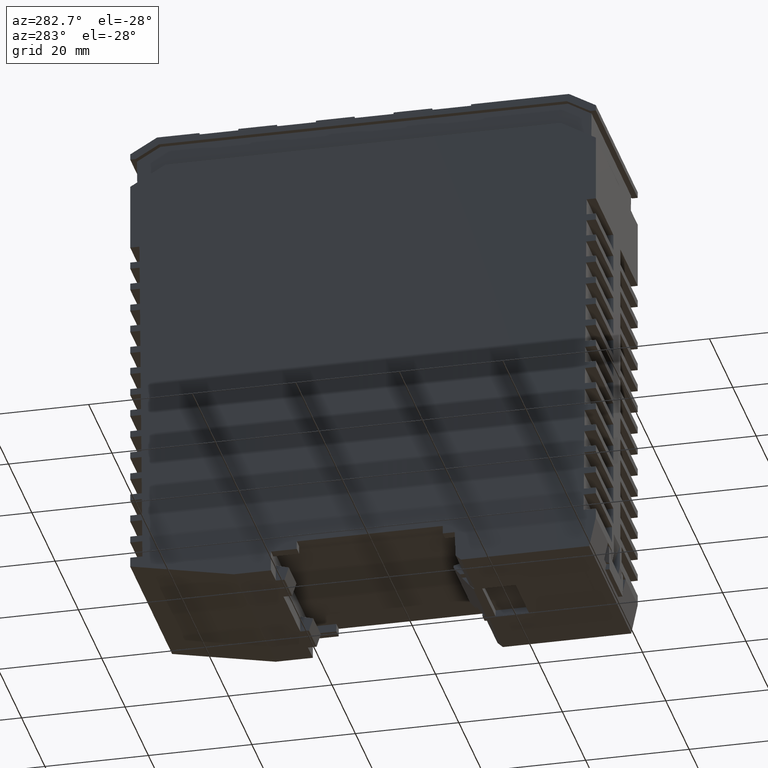
[diagram: clean part render]
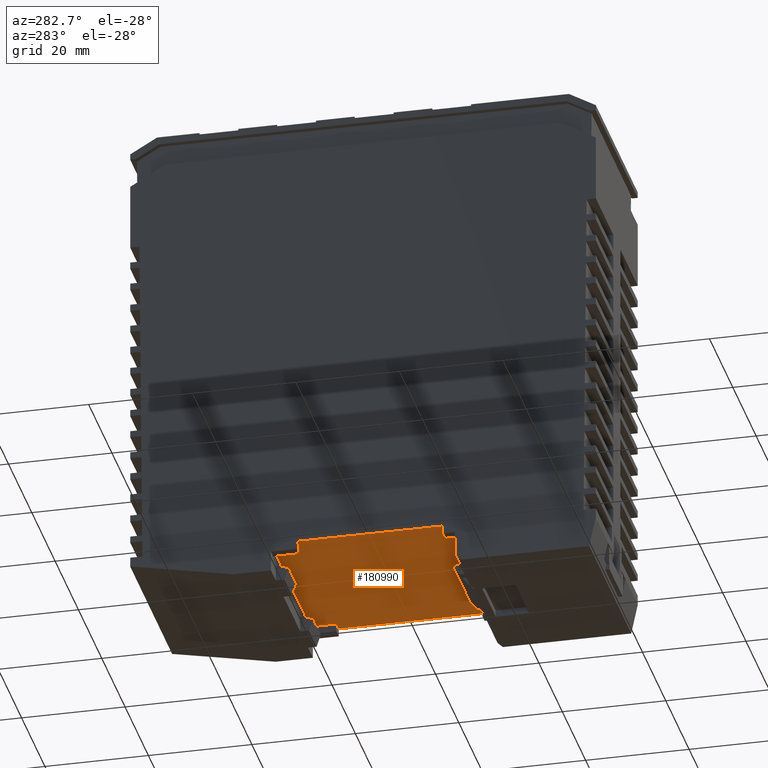
[diagram: same view with one face highlighted and labeled with its STEP entity id]
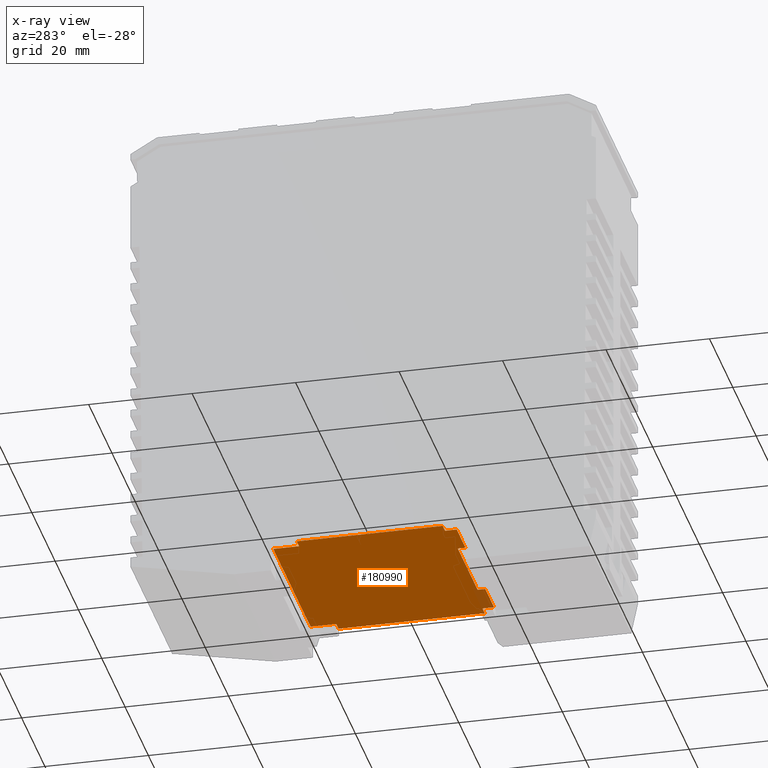
[diagram: x-ray of the same camera — body ghosted, the highlighted face saturated]
A machine part, auxiliary view. The second image highlights one B-rep face of the part: STEP entity #180990.
The next image is the same camera in x-ray: the body ghosted, the highlighted face saturated — about 2% of this face is hidden behind the body in this view.
In plain terms, the highlighted planar face has unit normal (-0, 0, 1).
Its self-contained STEP definition (entity closure, byte-faithful):
#9910=CARTESIAN_POINT('',(166.400000202669,9.2999999999998,
-34.799790209862));
#9920=VERTEX_POINT('',#9910);
#9950=CARTESIAN_POINT('',(166.400000202669,24.6999996755416,
-34.799790209862));
#9960=DIRECTION('',(-1.00166402301343E-25,1.,-8.52299310107004E-24));
#9970=VECTOR('',#9960,1.);
#9980=LINE('',#9950,#9970);
#9990=CARTESIAN_POINT('',(166.400000202669,37.4999999999998,
-34.799790209862));
#10000=VERTEX_POINT('',#9990);
#10010=EDGE_CURVE('',#9920,#10000,#9980,.T.);
#78060=CARTESIAN_POINT('',(166.400000231902,8.53015907447921,
-8.30937387732433));
#78070=VERTEX_POINT('',#78060);
#78100=CARTESIAN_POINT('',(166.400000202669,8.53015907447921,
-34.799790209862));
#78110=DIRECTION('',(-1.10352367625519E-9,5.5511142706911E-17,-1.));
#78120=VECTOR('',#78110,1.);
#78130=LINE('',#78100,#78120);
#78140=CARTESIAN_POINT('',(166.400000213142,8.53015907447921,
-25.3093738773243));
#78150=VERTEX_POINT('',#78140);
#78160=EDGE_CURVE('',#78070,#78150,#78130,.T.);
#86990=CARTESIAN_POINT('',(166.400000240189,37.4999999999998,
-0.799790209861939));
#87000=VERTEX_POINT('',#86990);
#87030=CARTESIAN_POINT('',(166.4000002464,37.4999999999998,
4.82900992120997));
#87040=DIRECTION('',(-1.10352367625519E-9,-8.52434683568721E-24,-1.));
#87050=VECTOR('',#87040,1.);
#87060=LINE('',#87030,#87050);
#87070=CARTESIAN_POINT('',(166.400000242396,37.4999999999998,
1.20020979013805));
#87080=VERTEX_POINT('',#87070);
#87090=EDGE_CURVE('',#87080,#87000,#87060,.T.);
#87320=CARTESIAN_POINT('',(166.400000204876,37.4999999999998,
-32.799790209862));
#87330=VERTEX_POINT('',#87320);
#87340=EDGE_CURVE('',#87330,#10000,#87060,.T.);
#87890=CARTESIAN_POINT('',(166.400000204876,42.4999999999998,
-32.799790209862));
#87900=DIRECTION('',(1.38940493514766E-25,-1.,8.52435413265058E-24));
#87910=VECTOR('',#87900,1.);
#87920=LINE('',#87890,#87910);
#87930=CARTESIAN_POINT('',(166.400000204876,42.4999999999998,
-32.799790209862));
#87940=VERTEX_POINT('',#87930);
#87950=EDGE_CURVE('',#87940,#87330,#87920,.T.);
#88310=CARTESIAN_POINT('',(166.400000231902,7.04221754539103,
-8.30937387732433));
#88320=VERTEX_POINT('',#88310);
#88350=CARTESIAN_POINT('',(166.400000231902,24.6999996755416,
-8.30937387732434));
#88360=DIRECTION('',(1.00166402301343E-25,-1.,8.52435413265058E-24));
#88370=VECTOR('',#88360,1.);
#88380=LINE('',#88350,#88370);
#88390=EDGE_CURVE('',#78070,#88320,#88380,.T.);
#99640=CARTESIAN_POINT('',(166.400000240189,42.4999999999998,
-0.799790209861939));
#99650=VERTEX_POINT('',#99640);
#99680=CARTESIAN_POINT('',(166.400000240189,34.4999999999998,
-0.799790209861938));
#99690=DIRECTION('',(-1.38940493514766E-25,1.,-8.52435413265058E-24));
#99700=VECTOR('',#99690,1.);
#99710=LINE('',#99680,#99700);
#99720=EDGE_CURVE('',#87000,#99650,#99710,.T.);
#102410=CARTESIAN_POINT('',(166.400000240189,7.04221754539103,
-0.799790209861944));
#102420=VERTEX_POINT('',#102410);
#102470=CARTESIAN_POINT('',(166.400000231902,7.04221754539103,
-8.30937387732433));
#102480=DIRECTION('',(1.10352367625519E-9,8.5259624228211E-24,1.));
#102490=VECTOR('',#102480,1.);
#102500=LINE('',#102470,#102490);
#102510=EDGE_CURVE('',#88320,#102420,#102500,.T.);
#102810=CARTESIAN_POINT('',(166.400000240189,9.2999999999998,
-0.799790209861944));
#102820=VERTEX_POINT('',#102810);
#102850=CARTESIAN_POINT('',(166.400000240189,7.04221754539103,
-0.799790209861944));
#102860=DIRECTION('',(-1.38940493514766E-25,1.,-8.52435413265058E-24));
#102870=VECTOR('',#102860,1.);
#102880=LINE('',#102850,#102870);
#102890=EDGE_CURVE('',#102420,#102820,#102880,.T.);
#103130=CARTESIAN_POINT('',(166.4000002464,9.2999999999998,
4.82900992120997));
#103140=DIRECTION('',(-1.10352367625519E-9,-8.52434683568721E-24,-1.));
#103150=VECTOR('',#103140,1.);
#103160=LINE('',#103130,#103150);
#103170=CARTESIAN_POINT('',(166.400000204876,9.2999999999998,
-32.799790209862));
#103180=VERTEX_POINT('',#103170);
#103190=EDGE_CURVE('',#103180,#9920,#103160,.T.);
#103510=CARTESIAN_POINT('',(166.400000213142,24.6999996755416,
-25.3093738773243));
#103520=DIRECTION('',(-1.00166402301343E-25,1.,-8.52435413265058E-24));
#103530=VECTOR('',#103520,1.);
#103540=LINE('',#103510,#103530);
#103550=CARTESIAN_POINT('',(166.400000213142,7.04221754539103,
-25.3093738773243));
#103560=VERTEX_POINT('',#103550);
#103570=EDGE_CURVE('',#103560,#78150,#103540,.T.);
#103900=CARTESIAN_POINT('',(166.400000204876,7.04221754539103,
-32.799790209862));
#103910=DIRECTION('',(1.10352367625519E-9,8.5259624228211E-24,1.));
#103920=VECTOR('',#103910,1.);
#103930=LINE('',#103900,#103920);
#103940=CARTESIAN_POINT('',(166.400000204876,7.04221754539103,
-32.799790209862));
#103950=VERTEX_POINT('',#103940);
#103960=EDGE_CURVE('',#103950,#103560,#103930,.T.);
#104340=CARTESIAN_POINT('',(166.400000204876,14.5326338779286,
-32.799790209862));
#104350=DIRECTION('',(1.38940493514766E-25,-1.,8.52435413265058E-24));
#104360=VECTOR('',#104350,1.);
#104370=LINE('',#104340,#104360);
#104380=EDGE_CURVE('',#103180,#103950,#104370,.T.);
#141160=CARTESIAN_POINT('',(166.400000242396,24.6999996755416,
1.20020979013806));
#141170=DIRECTION('',(1.00166402301343E-25,-1.,8.52273854551669E-24));
#141180=VECTOR('',#141170,1.);
#141190=LINE('',#141160,#141180);
#141200=CARTESIAN_POINT('',(166.400000242396,9.2999999999998,
1.20020979013806));
#141210=VERTEX_POINT('',#141200);
#141220=EDGE_CURVE('',#87080,#141210,#141190,.T.);
#180560=CARTESIAN_POINT('',(166.400000240189,42.4999999999998,
-0.799790209861939));
#180570=DIRECTION('',(-1.10352367625519E-9,-8.5259624228211E-24,-1.));
#180580=VECTOR('',#180570,1.);
#180590=LINE('',#180560,#180580);
#180600=EDGE_CURVE('',#99650,#87940,#180590,.T.);
#180750=CARTESIAN_POINT('',(166.4000002464,37.4999999999998,
4.82900992120997));
#180760=DIRECTION('',(-1.,-1.00166392896018E-25,1.10352367625518E-9));
#180770=DIRECTION('',(1.00166402301343E-25,-1.,8.52299310107004E-24));
#180780=AXIS2_PLACEMENT_3D('',#180750,#180760,#180770);
#180790=PLANE('',#180780);
#180800=ORIENTED_EDGE('',*,*,#87090,.F.);
#180810=ORIENTED_EDGE('',*,*,#99720,.F.);
#180820=ORIENTED_EDGE('',*,*,#180600,.F.);
#180830=ORIENTED_EDGE('',*,*,#87950,.F.);
#180840=ORIENTED_EDGE('',*,*,#87340,.F.);
#180850=ORIENTED_EDGE('',*,*,#10010,.T.);
#180860=ORIENTED_EDGE('',*,*,#103190,.T.);
#180870=ORIENTED_EDGE('',*,*,#104380,.F.);
#180880=ORIENTED_EDGE('',*,*,#103960,.F.);
#180890=ORIENTED_EDGE('',*,*,#103570,.F.);
#180900=ORIENTED_EDGE('',*,*,#78160,.T.);
#180910=ORIENTED_EDGE('',*,*,#88390,.F.);
#180920=ORIENTED_EDGE('',*,*,#102510,.F.);
#180930=ORIENTED_EDGE('',*,*,#102890,.F.);
#180940=EDGE_CURVE('',#141210,#102820,#103160,.T.);
#180950=ORIENTED_EDGE('',*,*,#180940,.T.);
#180960=ORIENTED_EDGE('',*,*,#141220,.T.);
#180970=EDGE_LOOP('',(#180960,#180950,#180930,#180920,#180910,#180900,
#180890,#180880,#180870,#180860,#180850,#180840,#180830,#180820,#180810,
#180800));
#180980=FACE_OUTER_BOUND('',#180970,.T.);
#180990=ADVANCED_FACE('',(#180980),#180790,.F.);